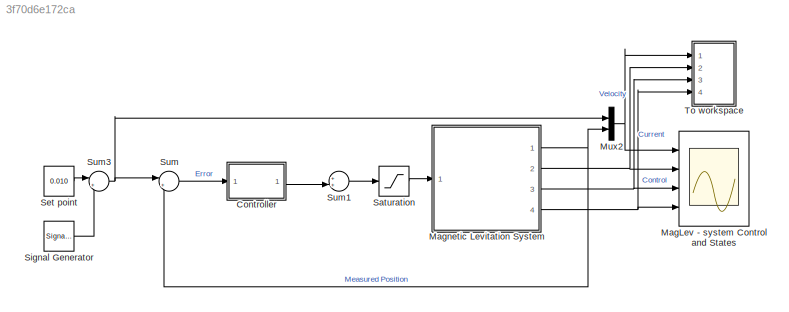
MODEL slx_3f70d6e172ca
KIND model
CONFIG AbsTol = 1e-6
CONFIG FixedStep = 0.001
CONFIG MaxStep = auto
CONFIG MinStep = auto
CONFIG PostLoadFcn = load ML_Sensor
CONFIG RelTol = 1e-3
CONFIG SampleTimeConstraint = Unconstrained
CONFIG Solver = ode5
CONFIG SolverMode = SingleTasking
CONFIG SolverName = ode5
CONFIG StartTime = 0.0
CONFIG StopTime = inf
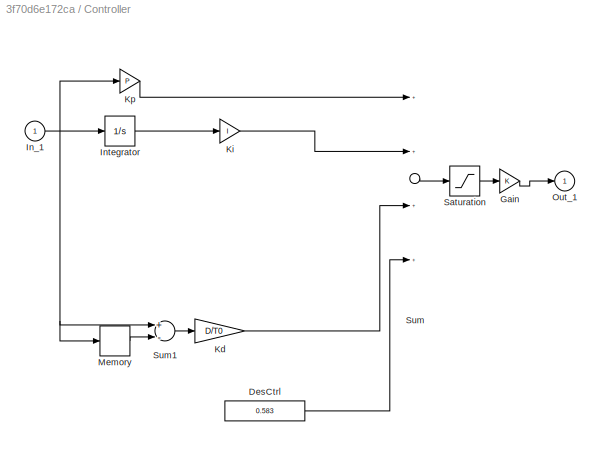
BLOCK [SubSystem] Controller
  Ports = [1, 1]
  RequestExecContextInheritance = off
BLOCK [Constant] Controller/DesCtrl
  Value = 0.583
BLOCK [Gain] Controller/Gain
BLOCK [Inport] Controller/In_1
  IconDisplay = Port number
BLOCK [Integrator] Controller/Integrator
  InitialCondition = 0*4e-5
  LimitOutput = on
  LowerSaturationLimit = -1
  Ports = [1, 1]
  UpperSaturationLimit = 1
BLOCK [Gain] Controller/Kd
  Gain = D/T0
BLOCK [Gain] Controller/Ki
  Gain = I
BLOCK [Gain] Controller/Kp
  Gain = P
BLOCK [Memory] Controller/Memory
BLOCK [Outport] Controller/Out_1
  IconDisplay = Port number
  InitialOutput = 0
BLOCK [Saturate] Controller/Saturation
  InputPortMap = u0
  LowerLimit = 0
  Ports = [1, 1]
  UpperLimit = 1
BLOCK [Sum] Controller/Sum
  Inputs = ++++
  Ports = [4, 1]
BLOCK [Sum] Controller/Sum1
  Inputs = +-
  Ports = [2, 1]
BLOCK [Scope] MagLev - system Control and States
  DataFormat = StructureWithTime
  ExtModeLoggingTrig = on
  ExtModeUploadOption = log
  Floating = off
  MaxDataPoints = 10000
  NumInputPorts = 4
  Ports = [4]
  SampleTime = 0
  SaveName = MLExpData
  SaveToWorkspace = on
  TimeRange = 10
  YMax = 0.014~0.075~1.4~0.525
  YMin = 0.0065~-0.075~0.7~0.175
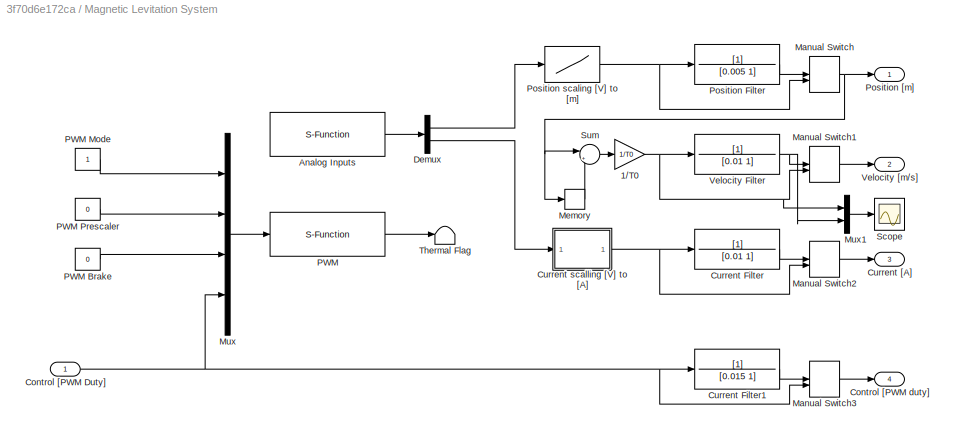
BLOCK [SubSystem] Magnetic Levitation System
  Ports = [1, 4]
  RequestExecContextInheritance = off
BLOCK [Gain] Magnetic Levitation System/1//T0
  Gain = 1/T0
BLOCK [S-Function] Magnetic Levitation System/Analog Inputs
  FunctionName = ML_AnalogInputs
  Parameters = BA, [4 2], [1 1], T0
  Ports = [0, 1]
BLOCK [Inport] Magnetic Levitation System/Control [PWM Duty]
  IconDisplay = Port number
BLOCK [Outport] Magnetic Levitation System/Control [PWM duty]
  IconDisplay = Port number
  Port = 4
BLOCK [TransferFcn] Magnetic Levitation System/Current Filter
  Denominator = [0.01 1]
BLOCK [TransferFcn] Magnetic Levitation System/Current Filter1
  Denominator = [0.015 1]
BLOCK [Outport] Magnetic Levitation System/Current [A]
  IconDisplay = Port number
  Port = 3
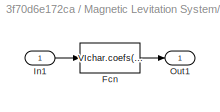
BLOCK [SubSystem] Magnetic Levitation System/Current scalling [V] to [A]
  Ports = [1, 1]
  RequestExecContextInheritance = off
BLOCK [Fcn] Magnetic Levitation System/Current scalling [V] to [A]/Fcn
  Expr = VIchar.coefs(1)*u^2+VIchar.coefs(2)*u+VIchar.coefs(3)
BLOCK [Inport] Magnetic Levitation System/Current scalling [V] to [A]/In1
  IconDisplay = Port number
BLOCK [Outport] Magnetic Levitation System/Current scalling [V] to [A]/Out1
  IconDisplay = Port number
BLOCK [Demux] Magnetic Levitation System/Demux
  Outputs = 2
  Ports = [1, 2]
BLOCK [ManualSwitch] Magnetic Levitation System/Manual Switch
  CurrentSetting = 0
BLOCK [ManualSwitch] Magnetic Levitation System/Manual Switch1
  CurrentSetting = 0
BLOCK [ManualSwitch] Magnetic Levitation System/Manual Switch2
  CurrentSetting = 0
BLOCK [ManualSwitch] Magnetic Levitation System/Manual Switch3
  CurrentSetting = 0
BLOCK [Memory] Magnetic Levitation System/Memory
BLOCK [Mux] Magnetic Levitation System/Mux
  DisplayOption = bar
  Ports = [4, 1]
BLOCK [Mux] Magnetic Levitation System/Mux1
  DisplayOption = bar
  Inputs = 2
  Ports = [2, 1]
BLOCK [S-Function] Magnetic Levitation System/PWM
  FunctionName = ML_PWM
  Parameters = BA, T0
  Ports = [1, 1]
BLOCK [Constant] Magnetic Levitation System/PWM Brake
  Value = 0
BLOCK [Constant] Magnetic Levitation System/PWM Mode
BLOCK [Constant] Magnetic Levitation System/PWM Prescaler
  Value = 0
BLOCK [TransferFcn] Magnetic Levitation System/Position Filter
  Denominator = [0.005 1]
BLOCK [Outport] Magnetic Levitation System/Position [m]
  IconDisplay = Port number
BLOCK [Lookup] Magnetic Levitation System/Position scaling [V] to [m]
  InputValues = sensor.V(end:-1:1)
  Table = sensor.d(end:-1:1)
BLOCK [Scope] Magnetic Levitation System/Scope
  Floating = off
  NumInputPorts = 1
  Ports = [1]
  SaveName = ScopeData1
  YMax = 0.125
  YMin = -0.15
BLOCK [Sum] Magnetic Levitation System/Sum
  IconShape = round
  Inputs = |+-
  Ports = [2, 1]
BLOCK [Terminator] Magnetic Levitation System/Thermal Flag
BLOCK [TransferFcn] Magnetic Levitation System/Velocity Filter
  Denominator = [0.01 1]
BLOCK [Outport] Magnetic Levitation System/Velocity [m//s]
  IconDisplay = Port number
  Port = 2
BLOCK [Mux] Mux2
  DisplayOption = bar
  Inputs = 2
  Ports = [2, 1]
BLOCK [Saturate] Saturation
  InputPortMap = u0
  LowerLimit = 0
  Ports = [1, 1]
  UpperLimit = 1
BLOCK [Constant] Set point
  Value = 0.010
BLOCK [SignalGenerator] Signal Generator
  Amplitude = 0.002
  Ports = [0, 1]
BLOCK [Sum] Sum
  IconShape = round
  InputSameDT = off
  Inputs = |+-
  OutDataTypeStr = Inherit: Inherit via internal rule
  Ports = [2, 1]
  SaturateOnIntegerOverflow = off
BLOCK [Sum] Sum1
  IconShape = round
  InputSameDT = off
  Inputs = ++|
  OutDataTypeStr = Inherit: Inherit via internal rule
  Ports = [2, 1]
  SaturateOnIntegerOverflow = off
BLOCK [Sum] Sum3
  IconShape = round
  InputSameDT = off
  Inputs = |+-
  OutDataTypeStr = Inherit: Inherit via internal rule
  Ports = [2, 1]
  SaturateOnIntegerOverflow = off
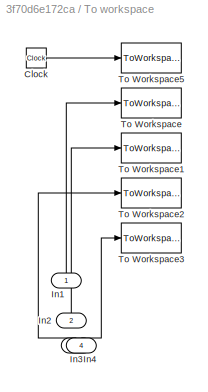
BLOCK [SubSystem] To workspace
  Ports = [4]
  RequestExecContextInheritance = off
BLOCK [Clock] To workspace/Clock
BLOCK [Inport] To workspace/In1
  IconDisplay = Port number
BLOCK [Inport] To workspace/In2
  IconDisplay = Port number
  Port = 2
BLOCK [Inport] To workspace/In3
  IconDisplay = Port number
  Port = 3
BLOCK [Inport] To workspace/In4
  IconDisplay = Port number
  Port = 4
BLOCK [ToWorkspace] To workspace/To Workspace
  FixptAsFi = on
  MaxDataPoints = inf
  Ports = [1]
  SampleTime = -1
  Save2DSignal = 3-D array (concatenate along third dimension)
  VariableName = sim_pos
BLOCK [ToWorkspace] To workspace/To Workspace1
  FixptAsFi = on
  MaxDataPoints = inf
  Ports = [1]
  SampleTime = -1
  Save2DSignal = 3-D array (concatenate along third dimension)
  VariableName = sim_vel
BLOCK [ToWorkspace] To workspace/To Workspace2
  FixptAsFi = on
  MaxDataPoints = inf
  Ports = [1]
  SampleTime = -1
  Save2DSignal = 3-D array (concatenate along third dimension)
  VariableName = sim_cur
BLOCK [ToWorkspace] To workspace/To Workspace3
  FixptAsFi = on
  MaxDataPoints = inf
  Ports = [1]
  SampleTime = -1
  Save2DSignal = 3-D array (concatenate along third dimension)
  VariableName = sim_con
BLOCK [ToWorkspace] To workspace/To Workspace5
  FixptAsFi = on
  MaxDataPoints = inf
  Ports = [1]
  SampleTime = -1
  Save2DSignal = 3-D array (concatenate along third dimension)
  VariableName = sim_time
LINE Controller/DesCtrl:1 -> Controller/Sum:4
LINE Controller/Gain:1 -> Controller/Out_1:1
NET Controller/In_1:1 -> Controller/Integrator:1, Controller/Kp:1, Controller/Memory:1, Controller/Sum1:1
LINE Controller/Integrator:1 -> Controller/Ki:1
LINE Controller/Kd:1 -> Controller/Sum:3
LINE Controller/Ki:1 -> Controller/Sum:2
LINE Controller/Kp:1 -> Controller/Sum:1
LINE Controller/Memory:1 -> Controller/Sum1:2
LINE Controller/Saturation:1 -> Controller/Gain:1
LINE Controller/Sum1:1 -> Controller/Kd:1
LINE Controller/Sum:1 -> Controller/Saturation:1
LINE Controller:1 -> Sum1:2
NET Magnetic Levitation System/1//T0:1 -> Magnetic Levitation System/Manual Switch1:2, Magnetic Levitation System/Mux1:1, Magnetic Levitation System/Velocity Filter:1
LINE Magnetic Levitation System/Analog Inputs:1 -> Magnetic Levitation System/Demux:1
NET Magnetic Levitation System/Control [PWM Duty]:1 -> Magnetic Levitation System/Current Filter1:1, Magnetic Levitation System/Manual Switch3:2, Magnetic Levitation System/Mux:4
LINE Magnetic Levitation System/Current Filter1:1 -> Magnetic Levitation System/Manual Switch3:1
LINE Magnetic Levitation System/Current Filter:1 -> Magnetic Levitation System/Manual Switch2:1
LINE Magnetic Levitation System/Current scalling [V] to [A]/Fcn:1 -> Magnetic Levitation System/Current scalling [V] to [A]/Out1:1
LINE Magnetic Levitation System/Current scalling [V] to [A]/In1:1 -> Magnetic Levitation System/Current scalling [V] to [A]/Fcn:1
NET Magnetic Levitation System/Current scalling [V] to [A]:1 -> Magnetic Levitation System/Current Filter:1, Magnetic Levitation System/Manual Switch2:2
LINE Magnetic Levitation System/Demux:1 -> Magnetic Levitation System/Position scaling [V] to [m]:1
LINE Magnetic Levitation System/Demux:2 -> Magnetic Levitation System/Current scalling [V] to [A]:1
LINE Magnetic Levitation System/Manual Switch1:1 -> Magnetic Levitation System/Velocity [m//s]:1
LINE Magnetic Levitation System/Manual Switch2:1 -> Magnetic Levitation System/Current [A]:1
LINE Magnetic Levitation System/Manual Switch3:1 -> Magnetic Levitation System/Control [PWM duty]:1
NET Magnetic Levitation System/Manual Switch:1 -> Magnetic Levitation System/Memory:1, Magnetic Levitation System/Position [m]:1, Magnetic Levitation System/Sum:1
LINE Magnetic Levitation System/Memory:1 -> Magnetic Levitation System/Sum:2
LINE Magnetic Levitation System/Mux1:1 -> Magnetic Levitation System/Scope:1
LINE Magnetic Levitation System/Mux:1 -> Magnetic Levitation System/PWM:1
LINE Magnetic Levitation System/PWM Brake:1 -> Magnetic Levitation System/Mux:3
LINE Magnetic Levitation System/PWM Mode:1 -> Magnetic Levitation System/Mux:1
LINE Magnetic Levitation System/PWM Prescaler:1 -> Magnetic Levitation System/Mux:2
LINE Magnetic Levitation System/PWM:1 -> Magnetic Levitation System/Thermal Flag:1
LINE Magnetic Levitation System/Position Filter:1 -> Magnetic Levitation System/Manual Switch:1
NET Magnetic Levitation System/Position scaling [V] to [m]:1 -> Magnetic Levitation System/Manual Switch:2, Magnetic Levitation System/Position Filter:1
LINE Magnetic Levitation System/Sum:1 -> Magnetic Levitation System/1//T0:1
NET Magnetic Levitation System/Velocity Filter:1 -> Magnetic Levitation System/Manual Switch1:1, Magnetic Levitation System/Mux1:2
NET Magnetic Levitation System:1 -> Mux2:2, Sum:2
NET Magnetic Levitation System:2 -> MagLev - system Control and States:2, To workspace:2
NET Magnetic Levitation System:3 -> MagLev - system Control and States:3, To workspace:3
NET Magnetic Levitation System:4 -> MagLev - system Control and States:4, To workspace:4
NET Mux2:1 -> MagLev - system Control and States:1, To workspace:1
LINE Saturation:1 -> Magnetic Levitation System:1
LINE Set point:1 -> Sum3:1
LINE Signal Generator:1 -> Sum3:2
LINE Sum1:1 -> Saturation:1
NET Sum3:1 -> Mux2:1, Sum:1
LINE Sum:1 -> Controller:1
LINE To workspace/Clock:1 -> To workspace/To Workspace5:1
LINE To workspace/In1:1 -> To workspace/To Workspace:1
LINE To workspace/In2:1 -> To workspace/To Workspace1:1
LINE To workspace/In3:1 -> To workspace/To Workspace2:1
LINE To workspace/In4:1 -> To workspace/To Workspace3:1
note: NET lines group one-source signal fan-out (src -> all destinations, sorted); 1:1 wires keep LINE
